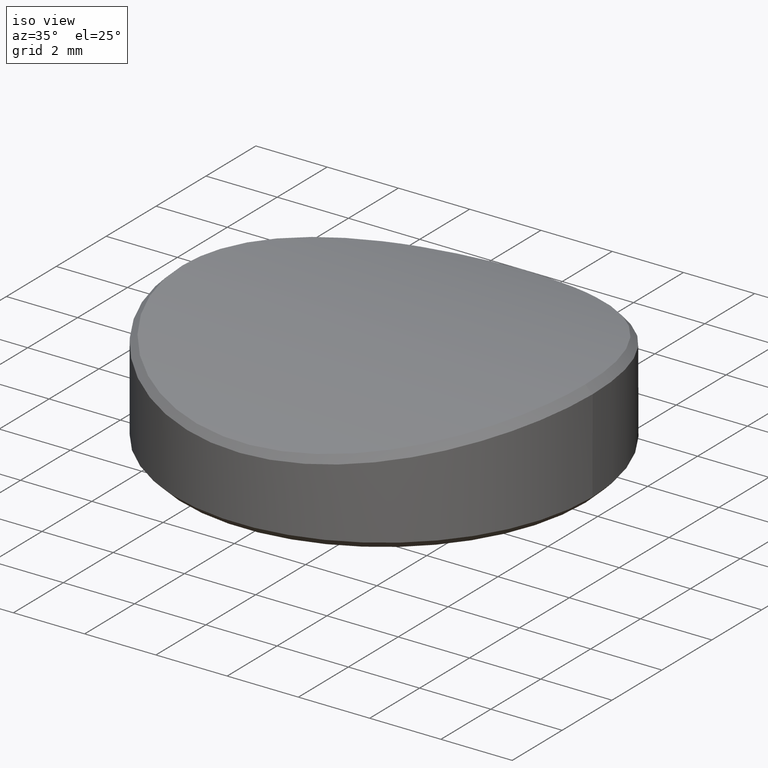
[diagram: clean part render]
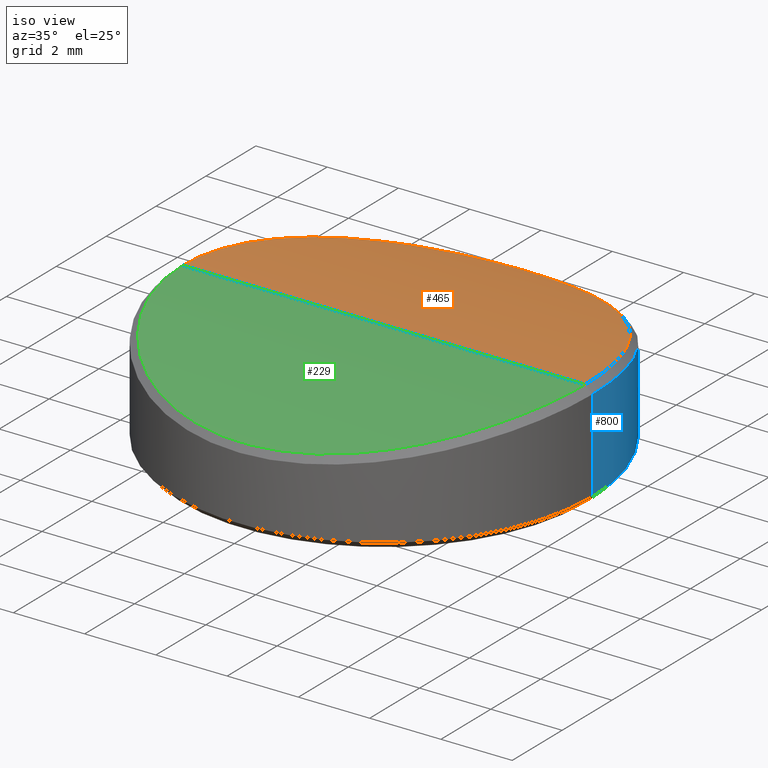
[diagram: same view with three faces highlighted in distinct colors, each labeled with its STEP entity id]
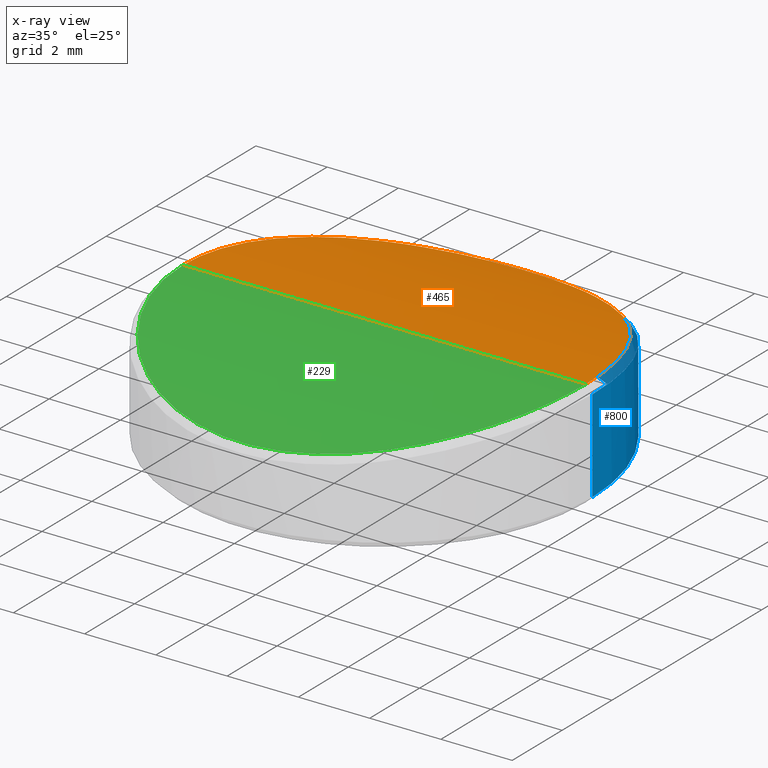
[diagram: x-ray of the same camera — body ghosted, the three highlighted faces saturated]
A machine part, iso view with three faces highlighted in distinct colors.
The next image is the same camera in x-ray (body ghosted, the three faces saturated) — at least one of them is partly hidden behind the body in this view.
Their STEP definitions:

[orange] entity #465 — the highlighted cylindrical surface (partial cylindrical patch) has radius 20.48 mm, axis along (-1, 0, 0).
#6 = CARTESIAN_POINT ( 'NONE',  ( 0.1820919715870071010, 5.705789783656772585, 2.192408130719779802 ) ) ;
#17 = CARTESIAN_POINT ( 'NONE',  ( -1.197611505156416678, 5.576863470290012614, 2.229360263193565395 ) ) ;
#28 = CARTESIAN_POINT ( 'NONE',  ( -1.560104813825831771, 5.484680613895704049, 2.255226462566418011 ) ) ;
#39 = CARTESIAN_POINT ( 'NONE',  ( 4.249078846071054905, 3.765271903573907064, 2.654714864116765938 ) ) ;
#76 = CARTESIAN_POINT ( 'NONE',  ( 40.00000000000000000, 0.000000000000000000, 3.003286062104027820 ) ) ;
#87 = CARTESIAN_POINT ( 'NONE',  ( -3.727900587513544028, 4.291478162985133515, 2.548971430717426490 ) ) ;
#176 = CARTESIAN_POINT ( 'NONE',  ( 3.726834604830323805, 4.292451323971132382, 2.548765595256394789 ) ) ;
#189 = CARTESIAN_POINT ( 'NONE',  ( 5.288633442906796489, 2.016503172480068606, 2.904512462697076192 ) ) ;
#198 = CARTESIAN_POINT ( 'NONE',  ( -0.3722288390294181681, 5.705578269670266600, 2.192469487712303877 ) ) ;
#208 = CARTESIAN_POINT ( 'NONE',  ( 1.467564117939984980, 5.513049332548602521, 2.247379673208429463 ) ) ;
#233 = CARTESIAN_POINT ( 'NONE',  ( -3.863262315714566242, 4.167629378088067327, 2.575199015981680439 ) ) ;
#246 = CARTESIAN_POINT ( 'NONE',  ( -4.592857193468594446, 3.328257717124024850, 2.731639078636501239 ) ) ;
#343 = EDGE_LOOP ( 'NONE', ( #1786, #1097 ) ) ;
#349 = DIRECTION ( 'NONE',  ( -1.000000000000000000, 0.000000000000000000, 0.000000000000000000 ) ) ;
#360 = CARTESIAN_POINT ( 'NONE',  ( 5.576073981278726777, 0.9387145754546645238, 2.982582829846829764 ) ) ;
#381 = CARTESIAN_POINT ( 'NONE',  ( 0.9245401694970463158, 5.631963526559015776, 2.213711626534883958 ) ) ;
#391 = CARTESIAN_POINT ( 'NONE',  ( 5.640892738599736944, 0.3747446570374339259, 3.000718431654407770 ) ) ;
#402 = CARTESIAN_POINT ( 'NONE',  ( 2.833586611491107465, 4.939853175262717500, 2.398814604796525085 ) ) ;
#415 = CARTESIAN_POINT ( 'NONE',  ( -5.649999999999995026, -2.352222582358988074E-15, 3.003286062104026932 ) ) ;
#465 = ADVANCED_FACE ( 'NONE', ( #516 ), #1208, .T. ) ;
#483 = DIRECTION ( 'NONE',  ( 0.000000000000000000, 0.000000000000000000, 1.000000000000000000 ) ) ;
#516 = FACE_OUTER_BOUND ( 'NONE', #343, .T. ) ;
#524 = CARTESIAN_POINT ( 'NONE',  ( -0.7408466236215441869, 5.668953427977138304, 2.203205584120743854 ) ) ;
#537 = AXIS2_PLACEMENT_3D ( 'NONE', #651, #349, #483 ) ;
#546 = CARTESIAN_POINT ( 'NONE',  ( -2.338323719776879805, 5.197456815786217987, 2.332937120565237166 ) ) ;
#556 = CARTESIAN_POINT ( 'NONE',  ( 5.649999999354567315, -2.098681798444134456E-15, 3.003286062097183517 ) ) ;
#569 = CARTESIAN_POINT ( 'NONE',  ( -2.989506389732487168, 4.845158971671605919, 2.422184329352351284 ) ) ;
#590 = EDGE_CURVE ( 'NONE', #1270, #733, #1206, .T. ) ;
#609 = CARTESIAN_POINT ( 'NONE',  ( -4.892046285492237523, 2.860673220502743419, 2.803186947615905922 ) ) ;
#634 = EDGE_CURVE ( 'NONE', #1270, #733, #1792, .T. ) ;
#651 = CARTESIAN_POINT ( 'NONE',  ( 40.00000000000000000, 0.000000000000000000, -17.47671393789597261 ) ) ;
#704 = CARTESIAN_POINT ( 'NONE',  ( 5.649999996761303933, 0.1879063406147306048, 3.003286062104027376 ) ) ;
#726 = CARTESIAN_POINT ( 'NONE',  ( 1.290217132622959673, 5.558147454701880541, 2.234675382612976158 ) ) ;
#733 = VERTEX_POINT ( 'NONE', #763 ) ;
#763 = CARTESIAN_POINT ( 'NONE',  ( -5.649999999999995026, -2.352222582358988074E-15, 3.003286062104026932 ) ) ;
#777 = CARTESIAN_POINT ( 'NONE',  ( -4.123607623572214109, 3.904946205231595080, 2.628005480122188597 ) ) ;
#789 = CARTESIAN_POINT ( 'NONE',  ( -4.797566034646846944, 3.019425579273212090, 2.780084926772238951 ) ) ;
#874 = CARTESIAN_POINT ( 'NONE',  ( 4.126538832205191021, 3.901841490283959324, 2.628614648702193524 ) ) ;
#907 = CARTESIAN_POINT ( 'NONE',  ( 5.075074587085982358, 2.535499791345424914, 2.848707075099063069 ) ) ;
#1011 = CARTESIAN_POINT ( 'NONE',  ( 5.649999999354567315, -2.098681798444134456E-15, 3.003286062097183517 ) ) ;
#1055 = CARTESIAN_POINT ( 'NONE',  ( 4.591652628535774383, 3.329928900189580876, 2.731360009378569043 ) ) ;
#1090 = CARTESIAN_POINT ( 'NONE',  ( 5.458009320620590188, 1.486446621078227004, 2.950052232643476380 ) ) ;
#1097 = ORIENTED_EDGE ( 'NONE', *, *, #590, .T. ) ;
#1206 = B_SPLINE_CURVE_WITH_KNOTS ( 'NONE', 3,
 ( #556, #704, #391, #1243, #360, #2078, #1090, #1219, #189, #907, #1940, #1055, #1391, #39, #874, #1425, #176, #1565, #1745, #1575, #402, #1231, #1757, #1401, #1586, #208, #726, #381, #1768, #1918, #6, #198, #524, #17, #2108, #1437, #28, #1415, #2097, #546, #2120, #1930, #569, #1264, #2133, #87, #233, #777, #1986, #2159, #246, #789, #609, #1475, #1462, #1975, #1623, #415 ),
 .UNSPECIFIED., .F., .F.,
 ( 4, 2, 2, 2, 2, 2, 2, 2, 2, 2, 2, 2, 2, 2, 2, 2, 2, 2, 2, 2, 2, 2, 2, 2, 2, 2, 2, 2, 4 ),
 ( 0.5000171661376947574, 0.5156416296958917789, 0.5312660932540888004, 0.5468905568122857108, 0.5625150203704827323, 0.5937639474868767753, 0.6093884110450737968, 0.6250128746032709293, 0.6406373381614679507, 0.6562618017196650833, 0.6718862652778621047, 0.6875107288360592372, 0.7031351923942562587, 0.7187596559524533912, 0.7343841195106504127, 0.7500085830688475452, 0.7812575101852416992, 0.7890697419643402100, 0.7968819737434387207, 0.8125064373016357422, 0.8281309008598327637, 0.8437553644180297852, 0.8593798279762269177, 0.8750042915344239391, 0.8906287550926210717, 0.9062532186508179821, 0.9218776822090150036, 0.9375021457672120251, 1.000000000000000000 ),
 .UNSPECIFIED. ) ;
#1208 = CYLINDRICAL_SURFACE ( 'NONE', #537, 20.48000000000000043 ) ;
#1219 = CARTESIAN_POINT ( 'NONE',  ( 5.350490312518313196, 1.842474925674027597, 2.921020884663914519 ) ) ;
#1231 = CARTESIAN_POINT ( 'NONE',  ( 2.505701662103621441, 5.117378025447577805, 2.353848998874217280 ) ) ;
#1243 = CARTESIAN_POINT ( 'NONE',  ( 5.604065039324988007, 0.7502091852693157925, 2.990402522070373603 ) ) ;
#1264 = CARTESIAN_POINT ( 'NONE',  ( -3.295745787753864064, 4.638170758987282483, 2.471446120654377854 ) ) ;
#1270 = VERTEX_POINT ( 'NONE', #1011 ) ;
#1391 = CARTESIAN_POINT ( 'NONE',  ( 4.482747724851710913, 3.477994380658038676, 2.706329767315149404 ) ) ;
#1401 = CARTESIAN_POINT ( 'NONE',  ( 1.995449751880425726, 5.341303136114835759, 2.294638903252846696 ) ) ;
#1415 = CARTESIAN_POINT ( 'NONE',  ( -1.824549918711277252, 5.403233926982928814, 2.277744716941256797 ) ) ;
#1425 = CARTESIAN_POINT ( 'NONE',  ( 3.864620965104843986, 4.166403329416784374, 2.575460205747591491 ) ) ;
#1437 = CARTESIAN_POINT ( 'NONE',  ( -1.469119098839700266, 5.510267129394732954, 2.248090868307143442 ) ) ;
#1462 = CARTESIAN_POINT ( 'NONE',  ( -5.144759392469305581, 2.365888846803827938, 2.866921144568125523 ) ) ;
#1475 = CARTESIAN_POINT ( 'NONE',  ( -5.066418180621065304, 2.532309610285039536, 2.846800503222351342 ) ) ;
#1565 = CARTESIAN_POINT ( 'NONE',  ( 3.442437103017266686, 4.528190789302678709, 2.496779924646960414 ) ) ;
#1575 = CARTESIAN_POINT ( 'NONE',  ( 2.989272656578075171, 4.845307205437031861, 2.422148121174195534 ) ) ;
#1586 = CARTESIAN_POINT ( 'NONE',  ( 1.821456423248557055, 5.404316882500145525, 2.277448680556068972 ) ) ;
#1623 = CARTESIAN_POINT ( 'NONE',  ( -5.650003568766464923, 0.7538875373292283077, 3.003286062104028264 ) ) ;
#1626 = VECTOR ( 'NONE', #1657, 1000.000000000000000 ) ;
#1657 = DIRECTION ( 'NONE',  ( -1.000000000000000000, 0.000000000000000000, 0.000000000000000000 ) ) ;
#1745 = CARTESIAN_POINT ( 'NONE',  ( 3.295478689670652717, 4.638361023496478275, 2.471401767018889029 ) ) ;
#1757 = CARTESIAN_POINT ( 'NONE',  ( 2.337661166524302558, 5.197812130038442113, 2.332845911376268955 ) ) ;
#1768 = CARTESIAN_POINT ( 'NONE',  ( 0.7401755591906791221, 5.659666277007625368, 2.205738831680039258 ) ) ;
#1786 = ORIENTED_EDGE ( 'NONE', *, *, #634, .F. ) ;
#1792 = LINE ( 'NONE', #76, #1626 ) ;
#1918 = CARTESIAN_POINT ( 'NONE',  ( 0.3696857939331608112, 5.696598581081688373, 2.195081455501799894 ) ) ;
#1930 = CARTESIAN_POINT ( 'NONE',  ( -2.829904510435472975, 4.941969618829422650, 2.398285698345219874 ) ) ;
#1940 = CARTESIAN_POINT ( 'NONE',  ( 4.898042941754304103, 2.868131096458458984, 2.803851650096476522 ) ) ;
#1975 = CARTESIAN_POINT ( 'NONE',  ( -5.502648683186546208, 1.497431426892638306, 2.960418776456831491 ) ) ;
#1986 = CARTESIAN_POINT ( 'NONE',  ( -4.246639578762685829, 3.768126599348602390, 2.654186508357990970 ) ) ;
#2078 = CARTESIAN_POINT ( 'NONE',  ( 5.503383512943410771, 1.304820850464401882, 2.962499643671578031 ) ) ;
#2097 = CARTESIAN_POINT ( 'NONE',  ( -1.998966483133496785, 5.339905106476041219, 2.295014511174609417 ) ) ;
#2108 = CARTESIAN_POINT ( 'NONE',  ( -1.288454214415859500, 5.556179375025846134, 2.235207308716166352 ) ) ;
#2120 = CARTESIAN_POINT ( 'NONE',  ( -2.503725907669806183, 5.118322731380670731, 2.353602415391296443 ) ) ;
#2133 = CARTESIAN_POINT ( 'NONE',  ( -3.444785170073139557, 4.526332938430655872, 2.497198283713312872 ) ) ;
#2159 = CARTESIAN_POINT ( 'NONE',  ( -4.481810211188294701, 3.479289124206910166, 2.706112376470456216 ) ) ;

[blue] entity #800 — the highlighted cylindrical surface (partial cylindrical patch) has radius 5.85 mm, axis along (-0, -0, -1).
#10 = CARTESIAN_POINT ( 'NONE',  ( -2.087045801781529875, 5.465423065479530607, 2.104289627223715264 ) ) ;
#43 = CARTESIAN_POINT ( 'NONE',  ( 1.238713084090641292, 5.717546022400854966, 2.037004954837044135 ) ) ;
#45 = DIRECTION ( 'NONE',  ( -0.000000000000000000, -0.000000000000000000, -1.000000000000000000 ) ) ;
#57 = VECTOR ( 'NONE', #1112, 1000.000000000000000 ) ;
#63 = EDGE_CURVE ( 'NONE', #1040, #575, #370, .T. ) ;
#79 = CARTESIAN_POINT ( 'NONE',  ( 4.309805532106049775, 3.955934058244429785, 2.440149489685259798 ) ) ;
#81 = CARTESIAN_POINT ( 'NONE',  ( -5.755541561891431179, 1.051467370188416295, 2.778051333680368273 ) ) ;
#91 = CARTESIAN_POINT ( 'NONE',  ( 4.039024325681269012, 4.232147728581447943, 2.387131860684261753 ) ) ;
#94 = CARTESIAN_POINT ( 'NONE',  ( -4.849353839144201928, 3.272061524925593545, 2.555550859817593778 ) ) ;
#104 = CARTESIAN_POINT ( 'NONE',  ( 4.669086703340320277, 3.524786697264400637, 2.515547051406904711 ) ) ;
#107 = CARTESIAN_POINT ( 'NONE',  ( -4.647383682997895171, 3.554364009144577619, 2.510765270380741487 ) ) ;
#116 = CARTESIAN_POINT ( 'NONE',  ( 4.873949981356050287, 3.235315928049204981, 2.561117989335988998 ) ) ;
#119 = CARTESIAN_POINT ( 'NONE',  ( -5.078534364787567590, 2.904257499074514026, 2.608432850369605926 ) ) ;
#126 = CARTESIAN_POINT ( 'NONE',  ( 4.393688095166768726, 3.862524558694791388, 2.457240516765556659 ) ) ;
#129 = CARTESIAN_POINT ( 'NONE',  ( -4.309299755681709421, 3.956336678245592875, 2.440058793531221237 ) ) ;
#137 = CARTESIAN_POINT ( 'NONE',  ( -3.693661640433887339, 4.536452759443691640, 2.324349160508167422 ) ) ;
#147 = CARTESIAN_POINT ( 'NONE',  ( -2.751321888929890935, 5.162640138517939015, 2.180774172765347796 ) ) ;
#155 = CARTESIAN_POINT ( 'NONE',  ( 5.849999999690336239, 1.250562986818305011E-13, 2.803286061411143670 ) ) ;
#158 = CARTESIAN_POINT ( 'NONE',  ( -3.923797412128370077, 4.338931305978539044, 2.365597928920428306 ) ) ;
#168 = CARTESIAN_POINT ( 'NONE',  ( -1.238251471542690441, 5.718233941765263673, 2.036822678864476099 ) ) ;
#171 = ORIENTED_EDGE ( 'NONE', *, *, #63, .T. ) ;
#180 = CARTESIAN_POINT ( 'NONE',  ( -0.3870577130898044671, 5.840270850771308808, 2.003078905022781075 ) ) ;
#212 = CARTESIAN_POINT ( 'NONE',  ( 0.1880370866196992563, 5.850089138991106275, 2.000321504704632325 ) ) ;
#224 = CARTESIAN_POINT ( 'NONE',  ( 1.609549643954223397, 5.625063422808737279, 2.062078359622221413 ) ) ;
#237 = CARTESIAN_POINT ( 'NONE',  ( 3.264147967449426702, 4.854688326954753386, 2.253830657371265200 ) ) ;
#249 = CARTESIAN_POINT ( 'NONE',  ( 3.831383218929999224, 4.421189027689803375, 2.348695712222284904 ) ) ;
#251 = CARTESIAN_POINT ( 'NONE',  ( -5.840493108220934815, 0.3855744699086394722, 2.800721691112817435 ) ) ;
#262 = CARTESIAN_POINT ( 'NONE',  ( 3.446483859152315254, 4.727233129990367821, 2.282698937889640067 ) ) ;
#265 = CARTESIAN_POINT ( 'NONE',  ( -5.811765661235575031, 0.6747308749704711284, 2.793027459970349735 ) ) ;
#275 = CARTESIAN_POINT ( 'NONE',  ( 4.342982784174449051, 3.919316517181157256, 2.446883951321168205 ) ) ;
#285 = CARTESIAN_POINT ( 'NONE',  ( 3.727804282909172429, 4.508446696479900595, 2.330315593249573158 ) ) ;
#287 = CARTESIAN_POINT ( 'NONE',  ( -5.800253646574621058, 0.7672829948994160931, 2.789947396414103942 ) ) ;
#295 = CARTESIAN_POINT ( 'NONE',  ( 3.769699757475736490, 4.473558803640420578, 2.337701377810606385 ) ) ;
#298 = CARTESIAN_POINT ( 'NONE',  ( -4.318983278456983932, 3.945745237864453525, 2.442017007250155469 ) ) ;
#307 = CARTESIAN_POINT ( 'NONE',  ( -1.050306559961495356, 5.755144043592583358, 2.026691429359232188 ) ) ;
#315 = CARTESIAN_POINT ( 'NONE',  ( 5.609126128171742387, 1.662036368128561703, 2.739703797465881330 ) ) ;
#327 = CARTESIAN_POINT ( 'NONE',  ( -1.795295948111480744, 5.568484199838144910, 2.077188215832019402 ) ) ;
#335 = CARTESIAN_POINT ( 'NONE',  ( 5.235046399484977186, 2.611701600842001980, 2.645883151697047797 ) ) ;
#338 = CARTESIAN_POINT ( 'NONE',  ( -3.418378115581775400, 4.747446214820067567, 2.278165425578949854 ) ) ;
#347 = AXIS2_PLACEMENT_3D ( 'NONE', #466, #1667, #1321 ) ;
#353 = CARTESIAN_POINT ( 'NONE',  ( -4.121920261192123291, 4.151186706286708272, 2.403030306472428990 ) ) ;
#364 = CARTESIAN_POINT ( 'NONE',  ( 2.328584828208264845, 5.366631497533967732, 2.129749482263483706 ) ) ;
#370 = B_SPLINE_CURVE_WITH_KNOTS ( 'NONE', 3,
 ( #431, #1110, #251, #265, #287, #1665, #81, #984, #1641, #961, #1992, #1331, #2166, #1675, #615, #1305, #1468, #1797, #2153, #1651, #938, #1136, #602, #1629, #1319, #1834, #1294, #119, #2177, #443, #1493, #94, #2017, #2188, #1821, #770, #107, #638, #1123, #796, #453, #464, #1156, #1809, #2196, #1147, #1845, #298, #129, #950, #783, #816, #646, #1036, #353, #2048, #2070, #686, #2037, #1003, #1704, #1518, #158, #1369, #867, #1165, #853, #1694, #1383, #1537, #2205, #137, #1394, #653, #1350, #1211, #1548, #1360, #1683, #338, #485, #2225, #1558, #497, #665, #1854, #1025, #1528, #2060, #147, #1197, #507, #1715, #676, #2235, #835, #698, #1185, #825, #10, #1887, #327, #1876, #519, #1015, #1727, #843, #168, #1176, #307, #1865, #1898, #994, #180, #474, #212, #1234, #1081, #898, #1070, #1578, #1418, #43, #2101, #741, #224, #730, #754, #1429, #910, #1047, #2111, #560, #364, #1405, #406, #1255, #1602, #1094, #1441, #2088, #878, #707, #1783, #237, #2013, #1327, #780, #971, #262, #1154, #585, #935, #1979, #1501, #948, #2175, #285, #624, #295, #249, #461, #1967, #793, #1806, #1315, #440, #1841, #1795, #91, #2002, #981, #1818, #418, #959, #2150, #450, #1673, #79, #1279, #275, #1119, #2137, #126, #1453, #2186, #428, #1108, #1479, #767, #1466, #104, #1145, #599, #1832, #1491, #1639, #1661, #2163, #116, #805, #636, #1989, #612, #1291, #1133, #1192, #2222, #1366, #335, #1724, #1895, #832, #2056, #1862, #1712, #1163, #814, #315, #823, #1379, #2194, #1851, #661, #1012, #1357, #1701, #2213, #2045, #493, #155 ),
 .UNSPECIFIED., .F., .F.,
 ( 4, 2, 2, 2, 2, 1, 2, 2, 1, 2, 2, 1, 1, 2, 2, 1, 1, 1, 2, 2, 1, 1, 2, 2, 2, 1, 1, 1, 2, 2, 1, 1, 2, 2, 2, 1, 1, 2, 2, 2, 1, 1, 1, 1, 2, 2, 1, 1, 1, 2, 2, 1, 1, 2, 2, 1, 1, 1, 2, 2, 1, 1, 1, 2, 2, 1, 1, 2, 2, 1, 1, 2, 2, 1, 2, 2, 2, 2, 2, 2, 1, 2, 2, 1, 2, 2, 1, 1, 2, 2, 1, 1, 1, 2, 2, 1, 1, 2, 2, 1, 1, 2, 2, 1, 1, 2, 2, 1, 1, 1, 2, 2, 2, 1, 1, 2, 2, 2, 1, 1, 1, 2, 2, 1, 1, 2, 2, 1, 1, 2, 2, 1, 1, 1, 2, 2, 1, 1, 1, 2, 2, 1, 1, 2, 2, 1, 2, 2, 1, 2, 4 ),
 ( 0.000000000000000000, 0.01562450091333342922, 0.02343675137000014036, 0.03124900182666684456, 0.03515512705500020707, 0.03906125228333355570, 0.04687350274000029460, 0.05077962796833365017, 0.05468575319666701962, 0.06249800365333374463, 0.06445106626750045364, 0.06640412888166714878, 0.07031025411000059455, 0.07812250456666749998, 0.07909903587375084755, 0.08007556718083418124, 0.08202862979500089025, 0.08593475502333428051, 0.09374700548000110267, 0.09472353678708442248, 0.09570006809416775617, 0.09765313070833445130, 0.1015592559366678416, 0.1093715063933346360, 0.1098597720468763167, 0.1103480377004179974, 0.1113245690075013589, 0.1132776316216680262, 0.1171837568500013471, 0.1176720225035430140, 0.1181602881570846669, 0.1191368194641679312, 0.1210898820783344598, 0.1249960073066676003, 0.1254842729602092255, 0.1259725386137508785, 0.1269490699208342677, 0.1289021325350009906, 0.1328082577633344086, 0.1330523905901052351, 0.1332965234168760615, 0.1337847890704176590, 0.1347613203775009094, 0.1367143829916674380, 0.1406205082200005230, 0.1411087738735421482, 0.1415970395270837734, 0.1425735708341671071, 0.1445266334483338022, 0.1484327586766671647, 0.1494092899837504984, 0.1503858212908338599, 0.1523388839050005272, 0.1562450091333339175, 0.1572215404404172789, 0.1581980717475006126, 0.1601511343616673078, 0.1640572595900008090, 0.1718695100466677284, 0.1728460413537510898, 0.1738225726608344512, 0.1757756352750012296, 0.1796817605033347309, 0.1874940109600017613, 0.1894470735741685119, 0.1914001361883352903, 0.1953062614166688471, 0.2031185118733359329, 0.2050715744875027113, 0.2070246371016694620, 0.2109307623300029910, 0.2187430127866701324, 0.2226491380150036614, 0.2265552632433372182, 0.2343675137000043318, 0.2499920146133385868, 0.2656165155266728140, 0.2734287659833399831, 0.2812410164400072077, 0.2851471416683407090, 0.2890532668966743213, 0.2968655173533414349, 0.3007716425816749917, 0.3046777678100084930, 0.3124900182666754955, 0.3144430808808422739, 0.3163961434950089968, 0.3203022687233424426, 0.3281145191800095007, 0.3290910504870928621, 0.3300675817941762236, 0.3320206444083430575, 0.3359267696366768363, 0.3437390200933443385, 0.3447155514004277554, 0.3456920827075112279, 0.3476451453216780618, 0.3515512705500118407, 0.3525278018570952576, 0.3535043331641787301, 0.3554573957783455640, 0.3593635210066792318, 0.3603400523137627043, 0.3613165836208461767, 0.3632696462350129551, 0.3671757714633464564, 0.3674199042901173384, 0.3676640371168882759, 0.3681523027704299844, 0.3691288340775135124, 0.3710818966916807349, 0.3749880219200150133, 0.3754762875735568328, 0.3759645532270985968, 0.3769410845341821248, 0.3788941471483492363, 0.3828002723766836257, 0.3832885380302253897, 0.3837768036837671537, 0.3847533349908507927, 0.3867063976050179042, 0.3906125228333521826, 0.3915890541404357106, 0.3925655854475192941, 0.3945186480616865166, 0.3984247732900209615, 0.3994013045971046560, 0.4003778359041883506, 0.4023308985183557396, 0.4062370237466904621, 0.4072135550537741566, 0.4081900863608578511, 0.4101431489750251291, 0.4140492742033596296, 0.4218615246600286306, 0.4228380559671123251, 0.4238145872741959086, 0.4257676498883631866, 0.4296737751166977981, 0.4374860255733669656, 0.4394390881875342436, 0.4413921508017015216, 0.4452982760300360776, 0.4531105264867053561, 0.4570166517150400232, 0.4609227769433746347, 0.4687350274000438022, 0.4726411526283784692, 0.4765472778567131362, 0.4843595283133823592, 0.4999840292267206943 ),
 .UNSPECIFIED. ) ;
#406 = CARTESIAN_POINT ( 'NONE',  ( 2.544207324946421878, 5.269305184212737636, 2.154433683021937274 ) ) ;
#408 = CARTESIAN_POINT ( 'NONE',  ( -5.849999999999999645, 0.000000000000000000, 6.000000000000000000 ) ) ;
#409 = VERTEX_POINT ( 'NONE', #2068 ) ;
#418 = CARTESIAN_POINT ( 'NONE',  ( 4.157420927652920817, 4.115629093260403160, 2.409924719806786797 ) ) ;
#428 = CARTESIAN_POINT ( 'NONE',  ( 4.527325325117002919, 3.704853676971064491, 2.485124862351102859 ) ) ;
#431 = CARTESIAN_POINT ( 'NONE',  ( -5.849999999999999645, 0.000000000000000000, 2.803286062104025422 ) ) ;
#440 = CARTESIAN_POINT ( 'NONE',  ( 3.944285668984909510, 4.320322673975278249, 2.369386911607437529 ) ) ;
#443 = CARTESIAN_POINT ( 'NONE',  ( -4.917427555021194330, 3.170417433125932050, 2.570956223830352272 ) ) ;
#450 = CARTESIAN_POINT ( 'NONE',  ( 4.232041607921718018, 4.038922272331268104, 2.424593801774598933 ) ) ;
#453 = CARTESIAN_POINT ( 'NONE',  ( -4.504873004706729134, 3.732110527895661889, 2.480386837038413006 ) ) ;
#461 = CARTESIAN_POINT ( 'NONE',  ( 3.888662381756349262, 4.370779707737372455, 2.359109028144244835 ) ) ;
#464 = CARTESIAN_POINT ( 'NONE',  ( -4.494353083475565391, 3.744796868962673830, 2.478172459237690362 ) ) ;
#466 = CARTESIAN_POINT ( 'NONE',  ( 0.000000000000000000, 0.000000000000000000, 0.2000000000000013989 ) ) ;
#474 = CARTESIAN_POINT ( 'NONE',  ( -0.1935431645698764136, 5.849909565415041257, 2.000372716993184863 ) ) ;
#485 = CARTESIAN_POINT ( 'NONE',  ( -3.349393277442997530, 4.796675575413994252, 2.267094328220339072 ) ) ;
#493 = CARTESIAN_POINT ( 'NONE',  ( 5.849999999999996980, 0.1919741305803964737, 2.803285606566844557 ) ) ;
#497 = CARTESIAN_POINT ( 'NONE',  ( -3.232680449276585044, 4.875698657126362079, 2.248997548972372140 ) ) ;
#507 = CARTESIAN_POINT ( 'NONE',  ( -2.717536394272151767, 5.180506548764798325, 2.176389638986459207 ) ) ;
#519 = CARTESIAN_POINT ( 'NONE',  ( -1.659589982483138160, 5.609711163854056437, 2.066175495525332639 ) ) ;
#560 = CARTESIAN_POINT ( 'NONE',  ( 2.285839454959488481, 5.384977151171199239, 2.125056096599282629 ) ) ;
#563 = ORIENTED_EDGE ( 'NONE', *, *, #1100, .F. ) ;
#575 = VERTEX_POINT ( 'NONE', #1173 ) ;
#577 = LINE ( 'NONE', #1971, #57 ) ;
#585 = CARTESIAN_POINT ( 'NONE',  ( 3.504337837156395796, 4.684254787969732270, 2.292223344316917988 ) ) ;
#599 = CARTESIAN_POINT ( 'NONE',  ( 4.710363973024511708, 3.469167221074740848, 2.524591526823528387 ) ) ;
#602 = CARTESIAN_POINT ( 'NONE',  ( -5.202300456468921475, 2.677383458567787589, 2.637932804627220573 ) ) ;
#612 = CARTESIAN_POINT ( 'NONE',  ( 5.044215275762096162, 2.965554185442384583, 2.600286153771393050 ) ) ;
#615 = CARTESIAN_POINT ( 'NONE',  ( -5.538535691774865377, 1.883980812377224145, 2.721538611780925709 ) ) ;
#624 = CARTESIAN_POINT ( 'NONE',  ( 3.744407356543386189, 4.494666832473825480, 2.333236920383587876 ) ) ;
#636 = CARTESIAN_POINT ( 'NONE',  ( 4.908376839456613183, 3.182990240067026022, 2.568948038017406343 ) ) ;
#638 = CARTESIAN_POINT ( 'NONE',  ( -4.585679389038565645, 3.633890840723272841, 2.497447001801107902 ) ) ;
#646 = CARTESIAN_POINT ( 'NONE',  ( -4.176454848403071907, 4.096729195802548240, 2.413606326773674038 ) ) ;
#653 = CARTESIAN_POINT ( 'NONE',  ( -3.645133059291512545, 4.575649984095445433, 2.315944969790733499 ) ) ;
#661 = CARTESIAN_POINT ( 'NONE',  ( 5.745086134015015666, 1.103947136288183639, 2.775288470304817956 ) ) ;
#665 = CARTESIAN_POINT ( 'NONE',  ( -3.211546806531084819, 4.889644914684383004, 2.245777550562497282 ) ) ;
#676 = CARTESIAN_POINT ( 'NONE',  ( -2.608725848892193611, 5.236524936294417287, 2.162559153505005050 ) ) ;
#686 = CARTESIAN_POINT ( 'NONE',  ( -4.050889917548370356, 4.220715058576183232, 2.389392141352370658 ) ) ;
#698 = CARTESIAN_POINT ( 'NONE',  ( -2.224337952449477296, 5.410669119631378088, 2.118455101905395654 ) ) ;
#707 = CARTESIAN_POINT ( 'NONE',  ( 3.044588883407203905, 4.996867164468604017, 2.220801950260123725 ) ) ;
#730 = CARTESIAN_POINT ( 'NONE',  ( 1.749337219718412273, 5.582534499082952628, 2.073436937492250998 ) ) ;
#741 = CARTESIAN_POINT ( 'NONE',  ( 1.469991233216734194, 5.663707603372626131, 2.051668170152477266 ) ) ;
#744 = ORIENTED_EDGE ( 'NONE', *, *, #1860, .T. ) ;
#754 = CARTESIAN_POINT ( 'NONE',  ( 1.791889688427067862, 5.569008679413831153, 2.077036241795772842 ) ) ;
#767 = CARTESIAN_POINT ( 'NONE',  ( 4.575066248038409888, 3.645862942873416834, 2.495266930379625769 ) ) ;
#770 = CARTESIAN_POINT ( 'NONE',  ( -4.732805462449752198, 3.438800242269115959, 2.529507860026426691 ) ) ;
#780 = CARTESIAN_POINT ( 'NONE',  ( 3.319895974879133238, 4.816816970982146451, 2.262493360446004687 ) ) ;
#783 = CARTESIAN_POINT ( 'NONE',  ( -4.262467022504281999, 4.006799096143296879, 2.430649870702317639 ) ) ;
#793 = CARTESIAN_POINT ( 'NONE',  ( 3.930786856583564859, 4.332599288845039531, 2.366888559568598893 ) ) ;
#796 = CARTESIAN_POINT ( 'NONE',  ( -4.511828184124158980, 3.723699265234498679, 2.481852435498704601 ) ) ;
#800 = ADVANCED_FACE ( 'NONE', ( #1276 ), #2146, .T. ) ;
#805 = CARTESIAN_POINT ( 'NONE',  ( 4.887789671814893211, 3.214369253702693108, 2.564261963161514668 ) ) ;
#814 = CARTESIAN_POINT ( 'NONE',  ( 5.568446232981134614, 1.795424683266259480, 2.729198909587052135 ) ) ;
#816 = CARTESIAN_POINT ( 'NONE',  ( -4.213454026027184440, 4.058517171297957304, 2.420896489329120271 ) ) ;
#823 = CARTESIAN_POINT ( 'NONE',  ( 5.623292195875854382, 1.613509019891476104, 2.743374171316996346 ) ) ;
#825 = CARTESIAN_POINT ( 'NONE',  ( -2.154848686590362661, 5.438724229083795159, 2.111209935324772413 ) ) ;
#832 = CARTESIAN_POINT ( 'NONE',  ( 5.411018157582963894, 2.223491797386139890, 2.689276786188679491 ) ) ;
#835 = CARTESIAN_POINT ( 'NONE',  ( -2.329586769950870995, 5.366920892160136347, 2.129703797616518290 ) ) ;
#843 = CARTESIAN_POINT ( 'NONE',  ( -1.378185768017820445, 5.686777897118218128, 2.045415268112136253 ) ) ;
#853 = CARTESIAN_POINT ( 'NONE',  ( -3.860961780863908288, 4.395065030054808197, 2.354083549720072721 ) ) ;
#867 = CARTESIAN_POINT ( 'NONE',  ( -3.911506683992957978, 4.350022021824430318, 2.363333471810251218 ) ) ;
#878 = CARTESIAN_POINT ( 'NONE',  ( 2.902942088038267254, 5.079283272229648816, 2.201044907749297508 ) ) ;
#898 = CARTESIAN_POINT ( 'NONE',  ( 0.7647256708304775996, 5.800602727112356582, 2.014130092337473421 ) ) ;
#910 = CARTESIAN_POINT ( 'NONE',  ( 2.016322545138986122, 5.492988422857558284, 2.097127003603379336 ) ) ;
#935 = CARTESIAN_POINT ( 'NONE',  ( 3.522330560472197281, 4.670740200258087782, 2.295206022345654961 ) ) ;
#936 = VECTOR ( 'NONE', #45, 1000.000000000000000 ) ;
#938 = CARTESIAN_POINT ( 'NONE',  ( -5.336874777919881296, 2.396683440929910258, 2.670824116583793817 ) ) ;
#948 = CARTESIAN_POINT ( 'NONE',  ( 3.672102031385304777, 4.554203354369993129, 2.320573430811744053 ) ) ;
#950 = CARTESIAN_POINT ( 'NONE',  ( -4.285350853577264196, 3.982337989339927553, 2.435231095773922050 ) ) ;
#959 = CARTESIAN_POINT ( 'NONE',  ( 4.172388990297290157, 4.100489767111723971, 2.412845001536648049 ) ) ;
#961 = CARTESIAN_POINT ( 'NONE',  ( -5.696661232065597602, 1.331468794257126609, 2.762522427727796881 ) ) ;
#971 = CARTESIAN_POINT ( 'NONE',  ( 3.387297831273546667, 4.769971797940248948, 2.273126787883957611 ) ) ;
#981 = CARTESIAN_POINT ( 'NONE',  ( 4.143520319453139145, 4.129628080969241388, 2.407218156100261464 ) ) ;
#984 = CARTESIAN_POINT ( 'NONE',  ( -5.727133511156701218, 1.193640364889517969, 2.770544726236260136 ) ) ;
#994 = CARTESIAN_POINT ( 'NONE',  ( -0.6705832489971744748, 5.812214502844178732, 2.010898631727926045 ) ) ;
#1003 = CARTESIAN_POINT ( 'NONE',  ( -3.969607866636470028, 4.297320582567561331, 2.374073340965773049 ) ) ;
#1012 = CARTESIAN_POINT ( 'NONE',  ( 5.754395125329114791, 1.054416982625381305, 2.777753456641127716 ) ) ;
#1015 = CARTESIAN_POINT ( 'NONE',  ( -1.612623729112257154, 5.623392477867010797, 2.062507917330148377 ) ) ;
#1025 = CARTESIAN_POINT ( 'NONE',  ( -3.106455794913033586, 4.957492695420708806, 2.230004997065141215 ) ) ;
#1036 = CARTESIAN_POINT ( 'NONE',  ( -4.129607303079685821, 4.143536854689614302, 2.404518497053816262 ) ) ;
#1040 = VERTEX_POINT ( 'NONE', #1443 ) ;
#1047 = CARTESIAN_POINT ( 'NONE',  ( 2.152296422791804442, 5.440571840696584616, 2.110765030813945398 ) ) ;
#1070 = CARTESIAN_POINT ( 'NONE',  ( 0.9554754820889147515, 5.772249470746856126, 2.021980537120944721 ) ) ;
#1081 = CARTESIAN_POINT ( 'NONE',  ( 0.6708609368329403466, 5.812211476922763076, 2.010899072134766818 ) ) ;
#1094 = CARTESIAN_POINT ( 'NONE',  ( 2.783825021911467079, 5.145186499048468143, 2.185042367036261979 ) ) ;
#1100 = EDGE_CURVE ( 'NONE', #1040, #409, #1592, .T. ) ;
#1108 = CARTESIAN_POINT ( 'NONE',  ( 4.536322460497286713, 3.693837021092011952, 2.487029695569613175 ) ) ;
#1110 = CARTESIAN_POINT ( 'NONE',  ( -5.849999999999997868, 0.1924745023768422991, 2.803286310585990648 ) ) ;
#1112 = DIRECTION ( 'NONE',  ( -0.000000000000000000, -0.000000000000000000, -1.000000000000000000 ) ) ;
#1119 = CARTESIAN_POINT ( 'NONE',  ( 4.351596448621261715, 3.909750602510535522, 2.448636981151965042 ) ) ;
#1123 = CARTESIAN_POINT ( 'NONE',  ( -4.514527460148409332, 3.720428099244672104, 2.482421682068412849 ) ) ;
#1133 = CARTESIAN_POINT ( 'NONE',  ( 5.160685830940084706, 2.754986126249551415, 2.627978191873389768 ) ) ;
#1136 = CARTESIAN_POINT ( 'NONE',  ( -5.267909210471023229, 2.547054001450406613, 2.653835824999887016 ) ) ;
#1145 = CARTESIAN_POINT ( 'NONE',  ( 4.702359145558398623, 3.480006172439336520, 2.522834682787035820 ) ) ;
#1147 = CARTESIAN_POINT ( 'NONE',  ( -4.327077430238281508, 3.936869795416980455, 2.443655545765215820 ) ) ;
#1154 = CARTESIAN_POINT ( 'NONE',  ( 3.496510849603597482, 4.690103104639234743, 2.290930053800093624 ) ) ;
#1156 = CARTESIAN_POINT ( 'NONE',  ( -4.469191863079838178, 3.774879989695885563, 2.472893716930686825 ) ) ;
#1163 = CARTESIAN_POINT ( 'NONE',  ( 5.524058927211149772, 1.929573005717785783, 2.717803623547568215 ) ) ;
#1165 = CARTESIAN_POINT ( 'NONE',  ( -3.894463310925173172, 4.365312358549887861, 2.360203173857205794 ) ) ;
#1173 = CARTESIAN_POINT ( 'NONE',  ( 5.849999999690336239, 1.250562986818305011E-13, 2.803286061411143670 ) ) ;
#1176 = CARTESIAN_POINT ( 'NONE',  ( -1.098966145389682181, 5.746043416227450962, 2.029194147751973709 ) ) ;
#1185 = CARTESIAN_POINT ( 'NONE',  ( -2.200094318218432932, 5.420579221177963980, 2.115900449802264216 ) ) ;
#1192 = CARTESIAN_POINT ( 'NONE',  ( 5.167062524272748369, 2.743012671090508281, 2.629505755131223754 ) ) ;
#1197 = CARTESIAN_POINT ( 'NONE',  ( -2.739359085847505426, 5.169000285816724549, 2.179215242017977783 ) ) ;
#1211 = CARTESIAN_POINT ( 'NONE',  ( -3.523821855451348739, 4.669810502843337652, 2.295426795076346949 ) ) ;
#1234 = CARTESIAN_POINT ( 'NONE',  ( 0.3820748201227117669, 5.840714462117835737, 2.002956078888967983 ) ) ;
#1255 = CARTESIAN_POINT ( 'NONE',  ( 2.675815990065987915, 5.203129379299314294, 2.170869851183796939 ) ) ;
#1276 = FACE_OUTER_BOUND ( 'NONE', #1541, .T. ) ;
#1279 = CARTESIAN_POINT ( 'NONE',  ( 4.337442337223611943, 3.925444545204406221, 2.445758311216578385 ) ) ;
#1291 = CARTESIAN_POINT ( 'NONE',  ( 5.112786464329759362, 2.844297780777664375, 2.616520039073928938 ) ) ;
#1294 = CARTESIAN_POINT ( 'NONE',  ( -5.117704085936699343, 2.834168324718195908, 2.617721969555187655 ) ) ;
#1300 = DIRECTION ( 'NONE',  ( -0.000000000000000000, -0.000000000000000000, -1.000000000000000000 ) ) ;
#1305 = CARTESIAN_POINT ( 'NONE',  ( -5.491747490812986854, 2.019752397471649363, 2.709582514206820836 ) ) ;
#1315 = CARTESIAN_POINT ( 'NONE',  ( 3.936021206367621428, 4.327846139857783214, 2.367856421581691517 ) ) ;
#1319 = CARTESIAN_POINT ( 'NONE',  ( -5.144836146397210541, 2.784472782202565000, 2.624188517602917603 ) ) ;
#1321 = DIRECTION ( 'NONE',  ( 1.000000000000000000, 0.000000000000000000, 0.000000000000000000 ) ) ;
#1327 = CARTESIAN_POINT ( 'NONE',  ( 3.291379199612097572, 4.836264432182103334, 2.258050623165884119 ) ) ;
#1329 = CIRCLE ( 'NONE', #347, 5.849999999999999645 ) ;
#1331 = CARTESIAN_POINT ( 'NONE',  ( -5.624784257281358002, 1.610528469139542285, 2.743747731198470152 ) ) ;
#1350 = CARTESIAN_POINT ( 'NONE',  ( -3.578612641925408955, 4.628177869948492784, 2.304577188324919756 ) ) ;
#1357 = CARTESIAN_POINT ( 'NONE',  ( 5.771107302657157767, 0.9587381982989420237, 2.782187460196591910 ) ) ;
#1360 = CARTESIAN_POINT ( 'NONE',  ( -3.468276479340008933, 4.711020273595011965, 2.286289889192602232 ) ) ;
#1366 = CARTESIAN_POINT ( 'NONE',  ( 5.195862483251838526, 2.688229930537390011, 2.636422808401558626 ) ) ;
#1369 = CARTESIAN_POINT ( 'NONE',  ( -3.918872915972404947, 4.343379568709584859, 2.364690132193943306 ) ) ;
#1379 = CARTESIAN_POINT ( 'NONE',  ( 5.649132827279838232, 1.520567255079083191, 2.750090903009059673 ) ) ;
#1383 = CARTESIAN_POINT ( 'NONE',  ( -3.745272701915643321, 4.494123709900077479, 2.333367399624418415 ) ) ;
#1387 = ORIENTED_EDGE ( 'NONE', *, *, #2139, .T. ) ;
#1394 = CARTESIAN_POINT ( 'NONE',  ( -3.679012502894556391, 4.548367028679478175, 2.321801941192593421 ) ) ;
#1405 = CARTESIAN_POINT ( 'NONE',  ( 2.392893230684193462, 5.338578513051825958, 2.136907361318247212 ) ) ;
#1413 = AXIS2_PLACEMENT_3D ( 'NONE', #1998, #1300, #1963 ) ;
#1418 = CARTESIAN_POINT ( 'NONE',  ( 1.194386072879153105, 5.726981488665826348, 2.034422767553369926 ) ) ;
#1429 = CARTESIAN_POINT ( 'NONE',  ( 1.881485908561407738, 5.539380570313135799, 2.084886244151050505 ) ) ;
#1441 = CARTESIAN_POINT ( 'NONE',  ( 2.803538858886851948, 5.134471319359220409, 2.187655348387769205 ) ) ;
#1443 = CARTESIAN_POINT ( 'NONE',  ( -5.849999999999999645, 0.000000000000000000, 2.803286062104025422 ) ) ;
#1453 = CARTESIAN_POINT ( 'NONE',  ( 4.449619817374290243, 3.798339311167918453, 2.468781857979383432 ) ) ;
#1466 = CARTESIAN_POINT ( 'NONE',  ( 4.627289585043492082, 3.579757002311792835, 2.506461737298251613 ) ) ;
#1468 = CARTESIAN_POINT ( 'NONE',  ( -5.438966659768832201, 2.156365963831349930, 2.696259247404270809 ) ) ;
#1479 = CARTESIAN_POINT ( 'NONE',  ( 4.551922926857715268, 3.674595361662174930, 2.490341597316243494 ) ) ;
#1491 = CARTESIAN_POINT ( 'NONE',  ( 4.746367592659296974, 3.419872234137483424, 2.532522356751214954 ) ) ;
#1493 = CARTESIAN_POINT ( 'NONE',  ( -4.854410751178142469, 3.264560415051355857, 2.556693207188791117 ) ) ;
#1501 = CARTESIAN_POINT ( 'NONE',  ( 3.614318180757778443, 4.600339246022004502, 2.310632440086284767 ) ) ;
#1518 = CARTESIAN_POINT ( 'NONE',  ( -3.927688612769706822, 4.335408157778840810, 2.366316150248607197 ) ) ;
#1528 = CARTESIAN_POINT ( 'NONE',  ( -2.961270869338061384, 5.046739668990461780, 2.208943762947088718 ) ) ;
#1537 = CARTESIAN_POINT ( 'NONE',  ( -3.709266753574185671, 4.523700582046790153, 2.327070139730786469 ) ) ;
#1541 = EDGE_LOOP ( 'NONE', ( #171, #744, #1387, #563 ) ) ;
#1548 = CARTESIAN_POINT ( 'NONE',  ( -3.479503865296571519, 4.702730564679963088, 2.288131144833875474 ) ) ;
#1558 = CARTESIAN_POINT ( 'NONE',  ( -3.244397642107707203, 4.867906460974110061, 2.250792311625001041 ) ) ;
#1578 = CARTESIAN_POINT ( 'NONE',  ( 1.051017999246130152, 5.755637359641032624, 2.026563053125953751 ) ) ;
#1592 = LINE ( 'NONE', #408, #936 ) ;
#1602 = CARTESIAN_POINT ( 'NONE',  ( 2.775195899066705163, 5.149848997704075337, 2.183903780655965132 ) ) ;
#1629 = CARTESIAN_POINT ( 'NONE',  ( -5.149635071802823205, 2.775592178842547053, 2.625334725554488546 ) ) ;
#1639 = CARTESIAN_POINT ( 'NONE',  ( 4.795172533407473736, 3.351535330533797374, 2.543352177248668244 ) ) ;
#1641 = CARTESIAN_POINT ( 'NONE',  ( -5.717540178166975906, 1.238746404251491962, 2.768014501682642958 ) ) ;
#1651 = CARTESIAN_POINT ( 'NONE',  ( -5.364862328656199608, 2.332657161019613401, 2.677769406080281467 ) ) ;
#1661 = CARTESIAN_POINT ( 'NONE',  ( 4.834646491232641452, 3.294049534344977381, 2.552221422950394114 ) ) ;
#1665 = CARTESIAN_POINT ( 'NONE',  ( -5.772040712749716640, 0.9566669060983330475, 2.782432308212210881 ) ) ;
#1667 = DIRECTION ( 'NONE',  ( -0.000000000000000000, -0.000000000000000000, 1.000000000000000000 ) ) ;
#1673 = CARTESIAN_POINT ( 'NONE',  ( 4.281249145803377232, 3.986939041923609484, 2.434390960530487646 ) ) ;
#1675 = CARTESIAN_POINT ( 'NONE',  ( -5.568430630652874136, 1.793694963497538764, 2.729205528112895518 ) ) ;
#1683 = CARTESIAN_POINT ( 'NONE',  ( -3.448274200735200967, 4.725680775497892228, 2.283024818787452670 ) ) ;
#1694 = CARTESIAN_POINT ( 'NONE',  ( -3.796355535855851837, 4.451312587823225364, 2.342408188521641232 ) ) ;
#1701 = CARTESIAN_POINT ( 'NONE',  ( 5.794330183099723364, 0.8152418235658903667, 2.788362211007497482 ) ) ;
#1704 = CARTESIAN_POINT ( 'NONE',  ( -3.944272482821985726, 4.320377105738712586, 2.369378873564827348 ) ) ;
#1712 = CARTESIAN_POINT ( 'NONE',  ( 5.465441957319335131, 2.086991289447019504, 2.702950926387021280 ) ) ;
#1715 = CARTESIAN_POINT ( 'NONE',  ( -2.684830672600754919, 5.197618697060748083, 2.172180027633647814 ) ) ;
#1724 = CARTESIAN_POINT ( 'NONE',  ( 5.309469567148722646, 2.459318055527675906, 2.664014904348110058 ) ) ;
#1727 = CARTESIAN_POINT ( 'NONE',  ( -1.542207501468324304, 5.643425472823815348, 2.057127057304264817 ) ) ;
#1783 = CARTESIAN_POINT ( 'NONE',  ( 3.169329410449349016, 4.918143575136815215, 2.239244621835390525 ) ) ;
#1795 = CARTESIAN_POINT ( 'NONE',  ( 3.986671072579063946, 4.281299654784379349, 2.377283562048633669 ) ) ;
#1797 = CARTESIAN_POINT ( 'NONE',  ( -5.391489739561098560, 2.270451313992519982, 2.684396986608565072 ) ) ;
#1806 = CARTESIAN_POINT ( 'NONE',  ( 3.932833299732254595, 4.330741754723749892, 2.367266856481024639 ) ) ;
#1809 = CARTESIAN_POINT ( 'NONE',  ( -4.416372591096478395, 3.836935987095404510, 2.461888789228744656 ) ) ;
#1818 = CARTESIAN_POINT ( 'NONE',  ( 4.147300812363722500, 4.125826895877372280, 2.407953711882216297 ) ) ;
#1821 = CARTESIAN_POINT ( 'NONE',  ( -4.773732637157224623, 3.381947601540403969, 2.538570451543327167 ) ) ;
#1832 = CARTESIAN_POINT ( 'NONE',  ( 4.724846952794357513, 3.449416072151424650, 2.527777640713994689 ) ) ;
#1834 = CARTESIAN_POINT ( 'NONE',  ( -5.134042463164826486, 2.804324452434598935, 2.621613795119226431 ) ) ;
#1841 = CARTESIAN_POINT ( 'NONE',  ( 3.964103505466002542, 4.302191193179517370, 2.373067244155687927 ) ) ;
#1845 = CARTESIAN_POINT ( 'NONE',  ( -4.325310950559430268, 3.938807842823978778, 2.443297860928195675 ) ) ;
#1851 = CARTESIAN_POINT ( 'NONE',  ( 5.717335069302111883, 1.242350825334846531, 2.767955768395010008 ) ) ;
#1854 = CARTESIAN_POINT ( 'NONE',  ( -3.179900696568851437, 4.910380710083826372, 2.240979240549492157 ) ) ;
#1860 = EDGE_CURVE ( 'NONE', #575, #1902, #577, .T. ) ;
#1862 = CARTESIAN_POINT ( 'NONE',  ( 5.438821262956383684, 2.154602878346699502, 2.696251585436541642 ) ) ;
#1865 = CARTESIAN_POINT ( 'NONE',  ( -0.9552600010755217808, 5.771681311606049469, 2.022133400933476377 ) ) ;
#1876 = CARTESIAN_POINT ( 'NONE',  ( -1.684393226610880090, 5.602308202626792522, 2.068156080659198981 ) ) ;
#1887 = CARTESIAN_POINT ( 'NONE',  ( -1.929359192103908160, 5.524136874181325041, 2.088950486960857944 ) ) ;
#1895 = CARTESIAN_POINT ( 'NONE',  ( 5.366711343252433153, 2.330116253318941233, 2.678203948437730020 ) ) ;
#1898 = CARTESIAN_POINT ( 'NONE',  ( -0.8127537774874262766, 5.794659445164979772, 2.015784221509186125 ) ) ;
#1902 = VERTEX_POINT ( 'NONE', #2049 ) ;
#1963 = DIRECTION ( 'NONE',  ( -1.000000000000000000, 0.000000000000000000, 0.000000000000000000 ) ) ;
#1967 = CARTESIAN_POINT ( 'NONE',  ( 3.931133279830898886, 4.332286059905315234, 2.366952438369608558 ) ) ;
#1971 = CARTESIAN_POINT ( 'NONE',  ( 5.849999999999999645, 7.164183775012015436E-16, 6.000000000000000000 ) ) ;
#1979 = CARTESIAN_POINT ( 'NONE',  ( 3.549518124014030107, 4.650197436614369018, 2.299729687220722241 ) ) ;
#1989 = CARTESIAN_POINT ( 'NONE',  ( 4.955218573264809301, 3.110073601245969765, 2.579673011504406865 ) ) ;
#1992 = CARTESIAN_POINT ( 'NONE',  ( -5.663515096989553577, 1.470761631362622612, 2.753824621862571931 ) ) ;
#1998 = CARTESIAN_POINT ( 'NONE',  ( 0.000000000000000000, 0.000000000000000000, 6.000000000000000000 ) ) ;
#2002 = CARTESIAN_POINT ( 'NONE',  ( 4.083579846857383622, 4.189576831231284437, 2.395584943574329273 ) ) ;
#2013 = CARTESIAN_POINT ( 'NONE',  ( 3.272451975279138114, 4.849091539981537302, 2.255114230736375180 ) ) ;
#2017 = CARTESIAN_POINT ( 'NONE',  ( -4.837102654237929400, 3.290145466766688731, 2.552787248733578984 ) ) ;
#2037 = CARTESIAN_POINT ( 'NONE',  ( -4.021488793241052129, 4.248610430116166015, 2.383832898486889285 ) ) ;
#2045 = CARTESIAN_POINT ( 'NONE',  ( 5.840390278751774744, 0.3860436187082309512, 2.800695154650409968 ) ) ;
#2048 = CARTESIAN_POINT ( 'NONE',  ( -4.109390770492446165, 4.163590422396170609, 2.400611005429831746 ) ) ;
#2049 = CARTESIAN_POINT ( 'NONE',  ( 5.849999999999999645, 7.164183775012015436E-16, 0.2000000000000013989 ) ) ;
#2056 = CARTESIAN_POINT ( 'NONE',  ( 5.420737146395484096, 2.199704317278693200, 2.691711158289500361 ) ) ;
#2060 = CARTESIAN_POINT ( 'NONE',  ( -2.840150373993237665, 5.115082343320311864, 2.192412281447002620 ) ) ;
#2068 = CARTESIAN_POINT ( 'NONE',  ( -5.849999999999999645, 0.000000000000000000, 0.2000000000000013989 ) ) ;
#2070 = CARTESIAN_POINT ( 'NONE',  ( -4.090993797328938975, 4.181718561293977565, 2.397066986879050621 ) ) ;
#2088 = CARTESIAN_POINT ( 'NONE',  ( 2.833191485787549091, 5.118243853428984913, 2.191606238408965623 ) ) ;
#2101 = CARTESIAN_POINT ( 'NONE',  ( 1.331112905725566176, 5.696743021690553910, 2.042680563283160389 ) ) ;
#2111 = CARTESIAN_POINT ( 'NONE',  ( 2.266006859051192812, 5.393358812471768182, 2.122906313355105379 ) ) ;
#2137 = CARTESIAN_POINT ( 'NONE',  ( 4.364421946072468472, 3.895459609394282374, 2.451250885878120567 ) ) ;
#2139 = EDGE_CURVE ( 'NONE', #1902, #409, #1329, .T. ) ;
#2146 = CYLINDRICAL_SURFACE ( 'NONE', #1413, 5.849999999999999645 ) ;
#2150 = CARTESIAN_POINT ( 'NONE',  ( 4.205843188544118760, 4.066281059926883046, 2.419405381140721900 ) ) ;
#2153 = CARTESIAN_POINT ( 'NONE',  ( -5.383178102590493452, 2.290072215472847450, 2.682325064212025101 ) ) ;
#2163 = CARTESIAN_POINT ( 'NONE',  ( 4.866295253572844537, 3.246813795003271608, 2.559382762378604514 ) ) ;
#2166 = CARTESIAN_POINT ( 'NONE',  ( -5.582204242220080381, 1.750391605000843231, 2.732751450668453597 ) ) ;
#2175 = CARTESIAN_POINT ( 'NONE',  ( 3.721383470965341278, 4.513753167502862595, 2.329188575296042618 ) ) ;
#2177 = CARTESIAN_POINT ( 'NONE',  ( -4.995912771644921868, 3.046158175524304124, 2.589021840520453477 ) ) ;
#2186 = CARTESIAN_POINT ( 'NONE',  ( 4.493237582027258092, 3.746353147641929837, 2.477923715200865740 ) ) ;
#2188 = CARTESIAN_POINT ( 'NONE',  ( -4.818523225102850027, 3.317406914716318767, 2.548603244194312278 ) ) ;
#2194 = CARTESIAN_POINT ( 'NONE',  ( 5.686011509799896224, 1.381243875257351261, 2.759708934609104158 ) ) ;
#2196 = CARTESIAN_POINT ( 'NONE',  ( -4.366686644344435209, 3.893236654009821329, 2.451688948762043907 ) ) ;
#2205 = CARTESIAN_POINT ( 'NONE',  ( -3.703456105470861459, 4.528460315330991470, 2.326055548655165950 ) ) ;
#2213 = CARTESIAN_POINT ( 'NONE',  ( 5.812068966653067825, 0.6719571398454364797, 2.793108198251526897 ) ) ;
#2222 = CARTESIAN_POINT ( 'NONE',  ( 5.178640169041451635, 2.721091627104329280, 2.632283846924214021 ) ) ;
#2225 = CARTESIAN_POINT ( 'NONE',  ( -3.291659766729405412, 4.836273973485734956, 2.258063364989344901 ) ) ;
#2235 = CARTESIAN_POINT ( 'NONE',  ( -2.457430882609896727, 5.310318419552213953, 2.144123614692734048 ) ) ;

[green] entity #229 — the highlighted cylindrical surface (partial cylindrical patch) has radius 20.48 mm, axis along (-1, 0, 0).
#5 = CARTESIAN_POINT ( 'NONE',  ( 4.590030194624912241, -3.332273628455552750, 2.730981412345836468 ) ) ;
#16 = CARTESIAN_POINT ( 'NONE',  ( 4.124006549563944191, -3.904518502410667669, 2.628089274472542147 ) ) ;
#27 = CARTESIAN_POINT ( 'NONE',  ( 1.822844205857940825, -5.413594686483579110, 2.275386825476544139 ) ) ;
#38 = CARTESIAN_POINT ( 'NONE',  ( 5.146075532834245791, -2.362824954055934956, 2.867263080166030154 ) ) ;
#46 = ORIENTED_EDGE ( 'NONE', *, *, #1530, .T. ) ;
#51 = CARTESIAN_POINT ( 'NONE',  ( 5.631615184095816851, -0.4694171385832768828, 2.998119204541030758 ) ) ;
#76 = CARTESIAN_POINT ( 'NONE',  ( 40.00000000000000000, 0.000000000000000000, 3.003286062104027820 ) ) ;
#134 = CARTESIAN_POINT ( 'NONE',  ( -5.146319042570870472, -2.362267792568371938, 2.867325411162692461 ) ) ;
#144 = CARTESIAN_POINT ( 'NONE',  ( -2.990862651073115330, -4.844361493736072610, 2.422382928345998110 ) ) ;
#154 = CARTESIAN_POINT ( 'NONE',  ( -0.3737008081333446086, -5.705517873439172050, 2.192487007741859895 ) ) ;
#188 = CARTESIAN_POINT ( 'NONE',  ( 3.863498584558331395, -4.167416122967495973, 2.575244066293073786 ) ) ;
#197 = CARTESIAN_POINT ( 'NONE',  ( 4.890501462300133717, -2.863439431653760803, 2.802804827360458884 ) ) ;
#203 = CARTESIAN_POINT ( 'NONE',  ( 5.649999980699208280, -0.0004873080214596809193, 3.003286056490626521 ) ) ;
#229 = ADVANCED_FACE ( 'NONE', ( #1507 ), #1884, .T. ) ;
#314 = CARTESIAN_POINT ( 'NONE',  ( -3.735937154124873594, -4.296374439498990228, 2.549345751106500302 ) ) ;
#348 = CARTESIAN_POINT ( 'NONE',  ( 2.988604633782832032, -4.845691452819907319, 2.422051736220972362 ) ) ;
#359 = CARTESIAN_POINT ( 'NONE',  ( 2.336026597837456364, -5.196045333880600303, 2.333213678923845347 ) ) ;
#371 = CARTESIAN_POINT ( 'NONE',  ( 5.457996985391306843, -1.486607928811294776, 2.950047302260556670 ) ) ;
#380 = CARTESIAN_POINT ( 'NONE',  ( 1.468935667700869807, -5.522083118121665635, 2.244917632692667198 ) ) ;
#460 = CARTESIAN_POINT ( 'NONE',  ( 0.7458648083519143768, -5.668019149079880137, 2.203471851246025182 ) ) ;
#472 = CARTESIAN_POINT ( 'NONE',  ( -5.459722636220889491, -1.480253352664588462, 2.950518174922869719 ) ) ;
#482 = CARTESIAN_POINT ( 'NONE',  ( -5.640676142988874098, -0.3770509268971978800, 3.000657728494480203 ) ) ;
#492 = CARTESIAN_POINT ( 'NONE',  ( -1.827183942887016688, -5.402407803440152811, 2.277972832145472193 ) ) ;
#503 = CARTESIAN_POINT ( 'NONE',  ( -5.649999109975039069, -0.1880141851512891760, 3.003286062104028709 ) ) ;
#545 = CARTESIAN_POINT ( 'NONE',  ( 5.649815890876385360, -0.04754103403710779885, 3.003234247782677890 ) ) ;
#574 = CARTESIAN_POINT ( 'NONE',  ( 5.649999987678480551, -0.0003960321921745833676, 3.003286058498460420 ) ) ;
#634 = EDGE_CURVE ( 'NONE', #1270, #733, #1792, .T. ) ;
#643 = CARTESIAN_POINT ( 'NONE',  ( -4.491173652472776112, -3.482046165802891391, 2.707556061280181225 ) ) ;
#660 = CARTESIAN_POINT ( 'NONE',  ( -2.831482961494406148, -4.941024503031428594, 2.398519867675290573 ) ) ;
#672 = CARTESIAN_POINT ( 'NONE',  ( 5.649999971393045328, -0.0005741654400324649630, 3.003286054055540610 ) ) ;
#682 = CARTESIAN_POINT ( 'NONE',  ( -0.7425768303860329489, -5.668620673276542732, 2.203300123819603495 ) ) ;
#683 = DIRECTION ( 'NONE',  ( -1.000000000000000000, 0.000000000000000000, 0.000000000000000000 ) ) ;
#693 = CARTESIAN_POINT ( 'NONE',  ( 5.287768062936963887, -2.018731692114933640, 2.904283707709974127 ) ) ;
#714 = CARTESIAN_POINT ( 'NONE',  ( 2.503703387797715951, -5.115787585574778973, 2.354091307344620798 ) ) ;
#725 = CARTESIAN_POINT ( 'NONE',  ( 5.066085508120313108, -2.533077533641265422, 2.846713059972750148 ) ) ;
#733 = VERTEX_POINT ( 'NONE', #763 ) ;
#763 = CARTESIAN_POINT ( 'NONE',  ( -5.649999999999995026, -2.352222582358988074E-15, 3.003286062104026932 ) ) ;
#831 = CARTESIAN_POINT ( 'NONE',  ( -2.506273851913447981, -5.117035697658865345, 2.353933747809216825 ) ) ;
#849 = CARTESIAN_POINT ( 'NONE',  ( -5.577091068246477157, -0.9326166400278541602, 2.982865632679972290 ) ) ;
#885 = CARTESIAN_POINT ( 'NONE',  ( 5.641943415086611679, -0.3290101748680347438, 3.001018667392452599 ) ) ;
#890 = CARTESIAN_POINT ( 'NONE',  ( 5.649999996983223305, -0.0002046437121660201516, 3.003286061305159738 ) ) ;
#912 = CARTESIAN_POINT ( 'NONE',  ( 5.649999971393045328, -0.0005741654400324649630, 3.003286054055540610 ) ) ;
#1000 = CARTESIAN_POINT ( 'NONE',  ( -5.604224050557014003, -0.7484897548010299717, 2.990447097575519297 ) ) ;
#1011 = CARTESIAN_POINT ( 'NONE',  ( 5.649999999354567315, -2.098681798444134456E-15, 3.003286062097183517 ) ) ;
#1044 = CARTESIAN_POINT ( 'NONE',  ( 5.647977024407164315, -0.1648913300990971220, 3.002716333164722862 ) ) ;
#1049 = CARTESIAN_POINT ( 'NONE',  ( 5.649999999354567315, -2.098681798444134456E-15, 3.003286062097183517 ) ) ;
#1054 = CARTESIAN_POINT ( 'NONE',  ( 2.251265291757437392, -5.234058928310372671, 2.323195351914450146 ) ) ;
#1066 = CARTESIAN_POINT ( 'NONE',  ( 5.649998912558576336, -0.01045660950907742991, 3.003285776997053791 ) ) ;
#1132 = EDGE_CURVE ( 'NONE', #1456, #1270, #1687, .T. ) ;
#1162 = CARTESIAN_POINT ( 'NONE',  ( -4.255031928182523515, -3.772063012575573637, 2.654690400128470795 ) ) ;
#1172 = CARTESIAN_POINT ( 'NONE',  ( -4.799858456804451556, -3.015772423526279500, 2.780636997372061714 ) ) ;
#1191 = CARTESIAN_POINT ( 'NONE',  ( 0.3687006601381542237, -5.705920851599803889, 2.192370109900778186 ) ) ;
#1207 = CARTESIAN_POINT ( 'NONE',  ( 4.795761916847244954, -3.022390927358322266, 2.779646840518961159 ) ) ;
#1218 = CARTESIAN_POINT ( 'NONE',  ( 5.349937687619125803, -1.844183741420400313, 2.920873277856933736 ) ) ;
#1242 = CARTESIAN_POINT ( 'NONE',  ( 5.649961645362414409, -0.02406018411050300093, 3.003275294170047349 ) ) ;
#1258 = EDGE_LOOP ( 'NONE', ( #46, #1617, #1481 ) ) ;
#1270 = VERTEX_POINT ( 'NONE', #1011 ) ;
#1336 = CARTESIAN_POINT ( 'NONE',  ( -5.649999999999995026, -2.352222582358988074E-15, 3.003286062104026932 ) ) ;
#1347 = DIRECTION ( 'NONE',  ( 0.000000000000000000, 0.000000000000000000, 1.000000000000000000 ) ) ;
#1365 = CARTESIAN_POINT ( 'NONE',  ( -5.287755056094012751, -2.018729033075139068, 2.904281603315273408 ) ) ;
#1390 = CARTESIAN_POINT ( 'NONE',  ( 5.502852045823168226, -1.307388130148548600, 2.962353905079488481 ) ) ;
#1414 = CARTESIAN_POINT ( 'NONE',  ( 5.576391028224075619, -0.9372269032535489597, 2.982669331020630921 ) ) ;
#1456 = VERTEX_POINT ( 'NONE', #672 ) ;
#1481 = ORIENTED_EDGE ( 'NONE', *, *, #634, .T. ) ;
#1507 = FACE_OUTER_BOUND ( 'NONE', #1258, .T. ) ;
#1508 = B_SPLINE_CURVE_WITH_KNOTS ( 'NONE', 3,
 ( #1336, #503, #482, #1000, #849, #1700, #472, #1544, #1365, #134, #2231, #1850, #1172, #643, #1162, #314, #2212, #144, #660, #831, #1525, #2044, #492, #2055, #1872, #682, #154, #1191, #460, #380, #27, #1054, #359, #714, #1744, #2077, #348, #1574, #1939, #1756, #188, #16, #1585, #1555, #5, #1207, #197, #725, #38, #693, #1218, #371, #1390, #1414, #2096, #51, #885, #1044, #1598, #545, #1242, #1066, #1928 ),
 .UNSPECIFIED., .F., .F.,
 ( 4, 2, 2, 2, 2, 2, 2, 2, 2, 2, 2, 2, 2, 2, 2, 2, 2, 2, 2, 2, 2, 2, 2, 2, 2, 2, 2, 2, 1, 1, 1, 2, 4 ),
 ( 0.000000000000000000, 0.01562500000000001041, 0.03125000000000002082, 0.04687500000000004857, 0.06250000000000006939, 0.07812500000000009714, 0.09375000000000012490, 0.1250000000000001110, 0.1562500000000001388, 0.1718750000000001388, 0.1875000000000001665, 0.2031250000000001665, 0.2187500000000001665, 0.2500000000000002220, 0.2812500000000002220, 0.3125000000000002776, 0.3203125000000002776, 0.3281250000000002776, 0.3437500000000002220, 0.3593750000000001665, 0.3750000000000001110, 0.3906250000000001110, 0.4062500000000000555, 0.4218750000000000000, 0.4374999999999999445, 0.4531249999999999445, 0.4687500000000000000, 0.4843750000000000000, 0.4921875000000000000, 0.4960937500000000000, 0.4980468750000000000, 0.4990234375000000000, 0.5000000000000000000 ),
 .UNSPECIFIED. ) ;
#1525 = CARTESIAN_POINT ( 'NONE',  ( -2.340876567664474717, -5.196329805133100166, 2.333234968510236040 ) ) ;
#1530 = EDGE_CURVE ( 'NONE', #733, #1456, #1508, .T. ) ;
#1544 = CARTESIAN_POINT ( 'NONE',  ( -5.351402140404254659, -1.839963373178751027, 2.921263818842873228 ) ) ;
#1555 = CARTESIAN_POINT ( 'NONE',  ( 4.481231242367727852, -3.479961248356901127, 2.705987180809738657 ) ) ;
#1574 = CARTESIAN_POINT ( 'NONE',  ( 3.293483928684192819, -4.639775806294170302, 2.471069935925048533 ) ) ;
#1580 = CARTESIAN_POINT ( 'NONE',  ( 5.649999999308684018, -0.0001032235796401160269, 3.003286062104028264 ) ) ;
#1585 = CARTESIAN_POINT ( 'NONE',  ( 4.248185752339509236, -3.766266366893270323, 2.654525278572521518 ) ) ;
#1598 = CARTESIAN_POINT ( 'NONE',  ( 5.649489830691930337, -0.08275712283638174405, 3.003142400557965441 ) ) ;
#1617 = ORIENTED_EDGE ( 'NONE', *, *, #1132, .T. ) ;
#1626 = VECTOR ( 'NONE', #1657, 1000.000000000000000 ) ;
#1657 = DIRECTION ( 'NONE',  ( -1.000000000000000000, 0.000000000000000000, 0.000000000000000000 ) ) ;
#1687 = B_SPLINE_CURVE_WITH_KNOTS ( 'NONE', 3,
 ( #912, #203, #574, #890, #1580, #1049 ),
 .UNSPECIFIED., .F., .F.,
 ( 4, 2, 4 ),
 ( 0.5000000000000000000, 0.5000085830688474342, 0.5000171661376947574 ),
 .UNSPECIFIED. ) ;
#1700 = CARTESIAN_POINT ( 'NONE',  ( -5.504607432909044640, -1.299602774240316450, 2.962836023665615937 ) ) ;
#1744 = CARTESIAN_POINT ( 'NONE',  ( 2.587667797283990989, -5.072975815860762516, 2.365094397975755047 ) ) ;
#1756 = CARTESIAN_POINT ( 'NONE',  ( 3.725841003144418906, -4.293374400277781611, 2.548570912418762546 ) ) ;
#1792 = LINE ( 'NONE', #76, #1626 ) ;
#1842 = AXIS2_PLACEMENT_3D ( 'NONE', #2024, #683, #1347 ) ;
#1850 = CARTESIAN_POINT ( 'NONE',  ( -4.893618533294191941, -2.857889701444229047, 2.803574574466206837 ) ) ;
#1872 = CARTESIAN_POINT ( 'NONE',  ( -1.288160910030547557, -5.558599449085139810, 2.234547452901310738 ) ) ;
#1884 = CYLINDRICAL_SURFACE ( 'NONE', #1842, 20.48000000000000043 ) ;
#1928 = CARTESIAN_POINT ( 'NONE',  ( 5.649999971393045328, -0.0005741654400324649630, 3.003286054055540610 ) ) ;
#1939 = CARTESIAN_POINT ( 'NONE',  ( 3.439958246415233845, -4.530144845269456155, 2.496340028838408553 ) ) ;
#2024 = CARTESIAN_POINT ( 'NONE',  ( 40.00000000000000000, 0.000000000000000000, -17.47671393789597261 ) ) ;
#2044 = CARTESIAN_POINT ( 'NONE',  ( -1.999082261914838954, -5.339911505575383188, 2.295014975650328193 ) ) ;
#2055 = CARTESIAN_POINT ( 'NONE',  ( -1.469949692102871186, -5.512462413045557064, 2.247545683237631486 ) ) ;
#2077 = CARTESIAN_POINT ( 'NONE',  ( 2.830498738806995540, -4.941572092058791554, 2.398381833498276716 ) ) ;
#2096 = CARTESIAN_POINT ( 'NONE',  ( 5.604083300969075587, -0.7498498254360153048, 2.990408573141658977 ) ) ;
#2212 = CARTESIAN_POINT ( 'NONE',  ( -3.453268822910242619, -4.531459337621837058, 2.496824901472852520 ) ) ;
#2231 = CARTESIAN_POINT ( 'NONE',  ( -5.067180927228018383, -2.530693650023003727, 2.846996976698429105 ) ) ;